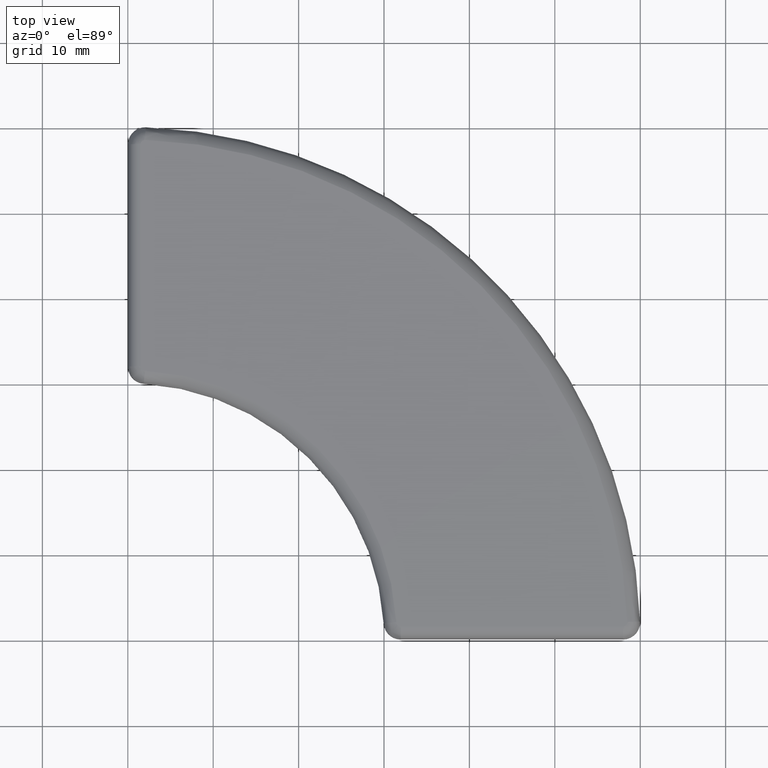
[diagram: clean part render]
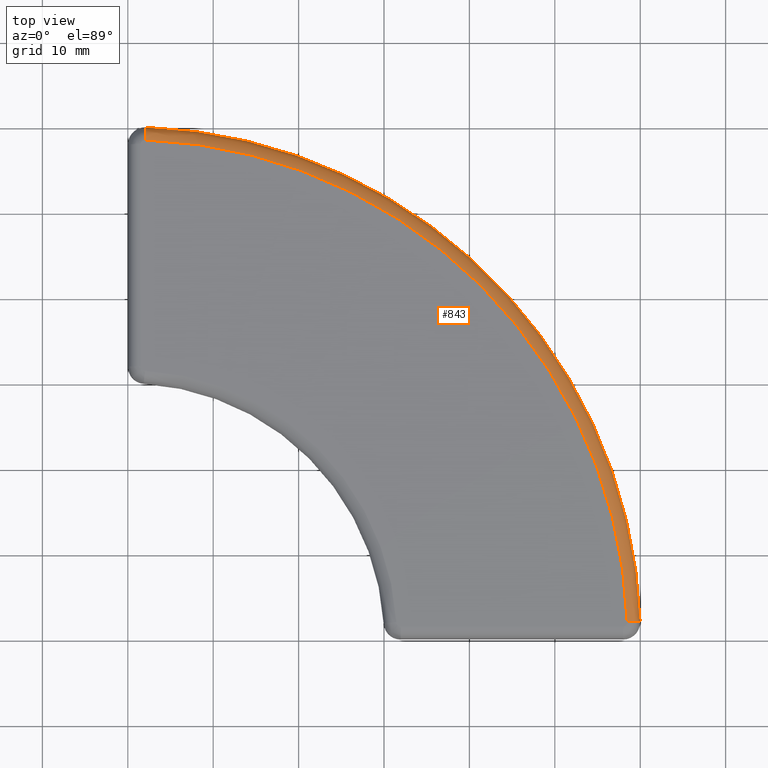
[diagram: same view with one face highlighted and labeled with its STEP entity id]
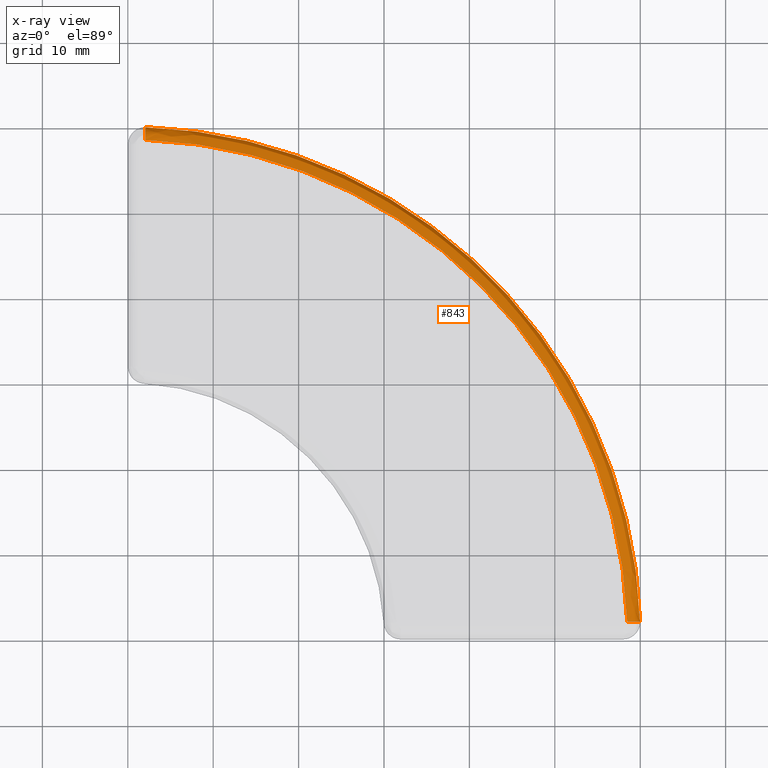
[diagram: x-ray of the same camera — body ghosted, the highlighted face saturated]
A machine part, top view. The second image highlights one B-rep face of the part: STEP entity #843.
The next image is the same camera in x-ray: the body ghosted, the highlighted face saturated — about 0% of this face is hidden behind the body in this view.
In plain terms, the highlighted face is a freeform B-spline surface patch.
Its self-contained STEP definition (entity closure, byte-faithful):
#155=CARTESIAN_POINT('',(28.483067249680406,-27.962983887922576,3.0));
#156=VERTEX_POINT('',#155);
#164=CARTESIAN_POINT('',(-27.965252812076695,28.479940712125739,3.0));
#165=VERTEX_POINT('',#164);
#166=CARTESIAN_POINT('',(-29.981967851583388,-29.985287427758109,3.0));
#167=DIRECTION('',(0.0,0.0,1.0));
#168=DIRECTION('',(0.999999996501695,0.000083645741258,0.0));
#169=AXIS2_PLACEMENT_3D('',#166,#167,#168);
#170=CIRCLE('',#169,58.500000350420841);
#171=EDGE_CURVE('',#156,#165,#170,.T.);
#223=CARTESIAN_POINT('',(29.982170704958794,-27.911129954875797,1.500000000000000));
#224=VERTEX_POINT('',#223);
#256=CARTESIAN_POINT('',(-27.913001899711862,29.979030290613615,1.500000000000000));
#257=VERTEX_POINT('',#256);
#264=CARTESIAN_POINT('',(-29.981967506176463,-29.985287276746956,1.500000000000000));
#265=DIRECTION('',(0.0,0.0,1.0));
#266=DIRECTION('',(0.999999996501695,0.000083645741258,0.0));
#267=AXIS2_PLACEMENT_3D('',#264,#265,#266);
#268=CIRCLE('',#267,60.000000000000014);
#269=EDGE_CURVE('',#224,#257,#268,.T.);
#742=CARTESIAN_POINT('',(-27.965252812076706,28.479940712125742,1.500000092608688));
#743=DIRECTION('',(0.999393114026914,-0.034833943727172,2.960595E-016));
#744=DIRECTION('',(0.034833943727172,0.999393114026912,-0.000000061739129));
#745=AXIS2_PLACEMENT_3D('',#742,#743,#744);
#746=CIRCLE('',#745,1.499999907391305);
#747=EDGE_CURVE('',#257,#165,#746,.T.);
#753=CARTESIAN_POINT('',(29.982170704958794,-27.911129954875797,1.500000000000000));
#754=CARTESIAN_POINT('',(29.982170704958794,-27.911129954875797,1.695090322016129));
#755=CARTESIAN_POINT('',(29.904159196569040,-27.913828370064330,2.089541724118273));
#756=CARTESIAN_POINT('',(29.570536252944709,-27.925368375339268,2.588119366037079));
#757=CARTESIAN_POINT('',(29.072256610575728,-27.942603849730965,2.921941835132038));
#758=CARTESIAN_POINT('',(28.678040966897569,-27.956239754258643,3.000000000000001));
#759=CARTESIAN_POINT('',(28.483067249680403,-27.962983887922576,3.0));
#760=CARTESIAN_POINT('',(29.852576781353310,-24.164554001132977,1.500000000000000));
#761=CARTESIAN_POINT('',(29.852576780783291,-24.164554001192830,1.695090323206327));
#762=CARTESIAN_POINT('',(29.774733828966429,-24.172125459905793,2.089541727764321));
#763=CARTESIAN_POINT('',(29.441831736518335,-24.204505455600390,2.588119370361875));
#764=CARTESIAN_POINT('',(28.944628717388817,-24.252866315963562,2.921941838036916));
#765=CARTESIAN_POINT('',(28.551264849784889,-24.291127175860094,3.000000000974954));
#766=CARTESIAN_POINT('',(28.356712409541782,-24.310050478865570,3.0));
#767=CARTESIAN_POINT('',(28.886335508669603,-16.676851438823718,1.500000000000000));
#768=CARTESIAN_POINT('',(28.886335507247583,-16.676851439071530,1.695090325274756));
#769=CARTESIAN_POINT('',(28.809749092224379,-16.694161893278540,2.089541734171069));
#770=CARTESIAN_POINT('',(28.482220694700370,-16.768191541669832,2.588119378013307));
#771=CARTESIAN_POINT('',(27.993043514540481,-16.878757877418025,2.921941843210828));
#772=CARTESIAN_POINT('',(27.606029320224977,-16.966232811353670,3.000000002717617));
#773=CARTESIAN_POINT('',(27.414617342495927,-17.009496728691321,3.000000000000000));
#774=CARTESIAN_POINT('',(25.369209589281144,-5.928048487642733,1.500000000000000));
#775=CARTESIAN_POINT('',(25.369209587595059,-5.928048488384582,1.695090327302600));
#776=CARTESIAN_POINT('',(25.297196842301556,-5.959339810033169,2.089541740696872));
#777=CARTESIAN_POINT('',(24.989228141105524,-6.093159839400597,2.588119385985932));
#778=CARTESIAN_POINT('',(24.529264177568681,-6.293025575434873,2.921941848720217));
#779=CARTESIAN_POINT('',(24.165362122318111,-6.451150032897591,3.000000004594208));
#780=CARTESIAN_POINT('',(23.985381095603980,-6.529356247439988,3.0));
#781=CARTESIAN_POINT('',(19.907252268372947,3.979590380049607,1.500000000000000));
#782=CARTESIAN_POINT('',(19.907252267305481,3.979590379252374,1.695090328211773));
#783=CARTESIAN_POINT('',(19.842342269276298,3.935411785025061,2.089541743990105));
#784=CARTESIAN_POINT('',(19.564749076141553,3.746478224886832,2.588119390267913));
#785=CARTESIAN_POINT('',(19.150152187713850,3.464298156801929,2.921941851846305));
#786=CARTESIAN_POINT('',(18.822142449655015,3.241050436361884,3.000000005687933));
#787=CARTESIAN_POINT('',(18.659913276862266,3.130635138234188,3.0));
#788=CARTESIAN_POINT('',(12.692443304203577,12.692818453329890,1.500000000000000));
#789=CARTESIAN_POINT('',(12.692443304310451,12.692818453279727,1.695090327997534));
#790=CARTESIAN_POINT('',(12.636915595857580,12.637305449911754,2.089541744014542));
#791=CARTESIAN_POINT('',(12.399446565694555,12.399899308260290,2.588119390800267));
#792=CARTESIAN_POINT('',(12.044776768796744,12.045323438234512,2.921941852538787));
#793=CARTESIAN_POINT('',(11.764178552802303,11.764799532894719,3.000000005980011));
#794=CARTESIAN_POINT('',(11.625398476551625,11.626056209685691,3.000000000000000));
#795=CARTESIAN_POINT('',(3.978590603865171,19.906872997274235,1.500000000000000));
#796=CARTESIAN_POINT('',(3.978590605237551,19.906872999004335,1.695090326709025));
#797=CARTESIAN_POINT('',(3.934394824599983,19.841974709890806,2.089541740891313));
#798=CARTESIAN_POINT('',(3.745387752198913,19.564431574049696,2.588119387704904));
#799=CARTESIAN_POINT('',(3.463097886596519,19.149909443198510,2.921941850865082));
#800=CARTESIAN_POINT('',(3.239763298246561,18.821958848258706,3.000000005490488));
#801=CARTESIAN_POINT('',(3.129305036447954,18.659758926877561,2.999999999999999));
#802=CARTESIAN_POINT('',(-5.929521124085880,25.367972492172953,1.500000000000000));
#803=CARTESIAN_POINT('',(-5.929521121915191,25.367972496708187,1.695090324446541));
#804=CARTESIAN_POINT('',(-5.960831509557267,25.295968053530764,2.089541734891411));
#805=CARTESIAN_POINT('',(-6.094733093841258,24.988034819547465,2.588119381276460));
#806=CARTESIAN_POINT('',(-6.294720640733254,24.528123816587865,2.921941847005261));
#807=CARTESIAN_POINT('',(-6.452941470873459,24.164263657840522,3.000000004276627));
#808=CARTESIAN_POINT('',(-6.531195350006969,23.984303352632121,3.000000000000001));
#809=CARTESIAN_POINT('',(-16.678628548480603,28.884167764684932,1.500000000000000));
#810=CARTESIAN_POINT('',(-16.678628546359498,28.884167772814724,1.695090321347520));
#811=CARTESIAN_POINT('',(-16.695959278307903,28.807585963251793,2.089541726395209));
#812=CARTESIAN_POINT('',(-16.770075660425483,28.480077203966044,2.588119371936072));
#813=CARTESIAN_POINT('',(-16.880771540751336,27.990929337379178,2.921941841222185));
#814=CARTESIAN_POINT('',(-16.968348965531547,27.603938329583421,3.000000002423085));
#815=CARTESIAN_POINT('',(-17.011663573423757,27.412537819701178,3.000000000000000));
#816=CARTESIAN_POINT('',(-24.166414739742436,29.849760746823840,1.500000000000000));
#817=CARTESIAN_POINT('',(-24.166414738728669,29.849760757581457,1.695090318865585));
#818=CARTESIAN_POINT('',(-24.174006809644606,29.771919835231998,2.089541719469136));
#819=CARTESIAN_POINT('',(-24.206474961634338,29.439026354137244,2.588119364221300));
#820=CARTESIAN_POINT('',(-24.254967488945727,28.941836176614501,2.921941836373442));
#821=CARTESIAN_POINT('',(-24.293332518129922,28.548482463129286,3.000000000855061));
#822=CARTESIAN_POINT('',(-24.312307341841194,28.353935045121485,3.0));
#823=CARTESIAN_POINT('',(-27.913001899711858,29.979030290613629,1.500000000000000));
#824=CARTESIAN_POINT('',(-27.913001899292293,29.979030302651026,1.695090317540526));
#825=CARTESIAN_POINT('',(-27.915720972166611,29.901019534521467,2.089541715745343));
#826=CARTESIAN_POINT('',(-27.927349324324318,29.567399684730916,2.588119360052283));
#827=CARTESIAN_POINT('',(-27.944716749161326,29.069124642247900,2.921941833738205));
#828=CARTESIAN_POINT('',(-27.958457046933773,28.674912632089057,3.000000000000002));
#829=CARTESIAN_POINT('',(-27.965252812076699,28.479940712125732,3.0));
#830=B_SPLINE_SURFACE_WITH_KNOTS('',3,3,((#753,#760,#767,#774,#781,#788,#795,#802,#809,#816,#823),(#754,#761,#768,#775,#782,#789,#796,#803,#810,#817,#824),(#755,#762,#769,#776,#783,#790,#797,#804,#811,#818,#825),(#756,#763,#770,#777,#784,#791,#798,#805,#812,#819,#826),(#757,#764,#771,#778,#785,#792,#799,#806,#813,#820,#827),(#758,#765,#772,#779,#786,#793,#800,#807,#814,#821,#828),(#759,#766,#773,#780,#787,#794,#801,#808,#815,#822,#829)),.UNSPECIFIED.,.F.,.F.,.U.,(4,1,1,1,4),(4,1,1,1,1,1,1,1,4),(0.0,0.585270971279050,1.170541939145510,1.755812903599378,2.341083864640656),(0.0,11.134780068364428,22.269560136196795,33.404340203827260,44.539120271586178,55.673900339789057,66.808680408721983,77.943460478628253,89.078240549696261),.UNSPECIFIED.);
#831=ORIENTED_EDGE('',*,*,#747,.T.);
#832=ORIENTED_EDGE('',*,*,#171,.F.);
#833=CARTESIAN_POINT('',(28.483067249680403,-27.962983887922576,1.500000000000000));
#834=DIRECTION('',(0.034569288697853,-0.999402303518921,1.295260E-016));
#835=DIRECTION('',(0.999402303518921,0.034569288697853,0.0));
#836=AXIS2_PLACEMENT_3D('',#833,#834,#835);
#837=CIRCLE('',#836,1.500000000000014);
#838=EDGE_CURVE('',#224,#156,#837,.T.);
#839=ORIENTED_EDGE('',*,*,#838,.F.);
#840=ORIENTED_EDGE('',*,*,#269,.T.);
#841=EDGE_LOOP('',(#831,#832,#839,#840));
#842=FACE_OUTER_BOUND('',#841,.T.);
#843=ADVANCED_FACE('',(#842),#830,.F.);